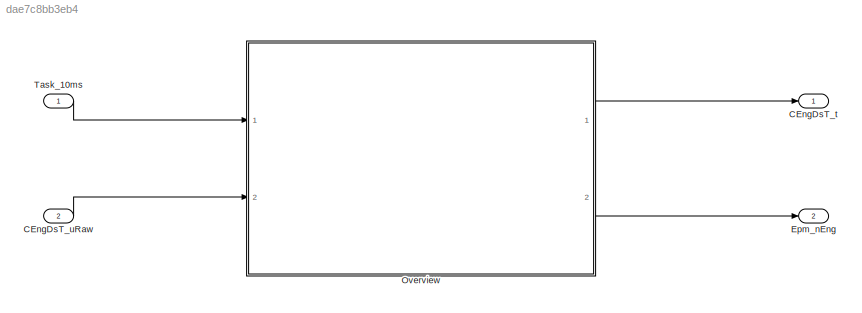
MODEL slx_dae7c8bb3eb4
KIND model
CONFIG AbsTol = auto
CONFIG EnableMultiTasking = off
CONFIG FixedStep = auto
CONFIG MaxStep = auto
CONFIG MinStep = auto
CONFIG RelTol = 1e-3
CONFIG SampleTimeConstraint = Unconstrained
CONFIG SolverName = VariableStepAuto
CONFIG StartTime = 0.0
CONFIG StopTime = 10.0
BLOCK [Outport] CEngDsT_t
BLOCK [Inport] CEngDsT_uRaw
  Port = 2
BLOCK [Outport] Epm_nEng
  Port = 2
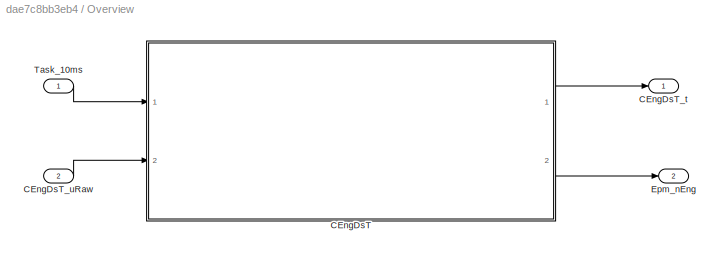
BLOCK [SubSystem] Overview
  Ports = [2, 2]
  RequestExecContextInheritance = off
BLOCK [ModelReference] Overview/CEngDsT
  ModelNameDialog = CEngDsT
  ModelReferenceVersion = 1.21
  Ports = [2, 2]
  ScheduleRates = on
BLOCK [Outport] Overview/CEngDsT_t
  VectorParamsAs1DForOutWhenUnconnected = off
BLOCK [Inport] Overview/CEngDsT_uRaw
  Port = 2
BLOCK [Outport] Overview/Epm_nEng
  Port = 2
BLOCK [Inport] Overview/Task_10ms
BLOCK [Inport] Task_10ms
  OutputFunctionCall = on
LINE CEngDsT_uRaw:1 -> Overview:2
LINE Overview/CEngDsT:1 -> Overview/CEngDsT_t:1
LINE Overview/CEngDsT:2 -> Overview/Epm_nEng:1
LINE Overview/CEngDsT_uRaw:1 -> Overview/CEngDsT:2
LINE Overview/Task_10ms:1 -> Overview/CEngDsT:1
LINE Overview:1 -> CEngDsT_t:1
LINE Overview:2 -> Epm_nEng:1
LINE Task_10ms:1 -> Overview:1
